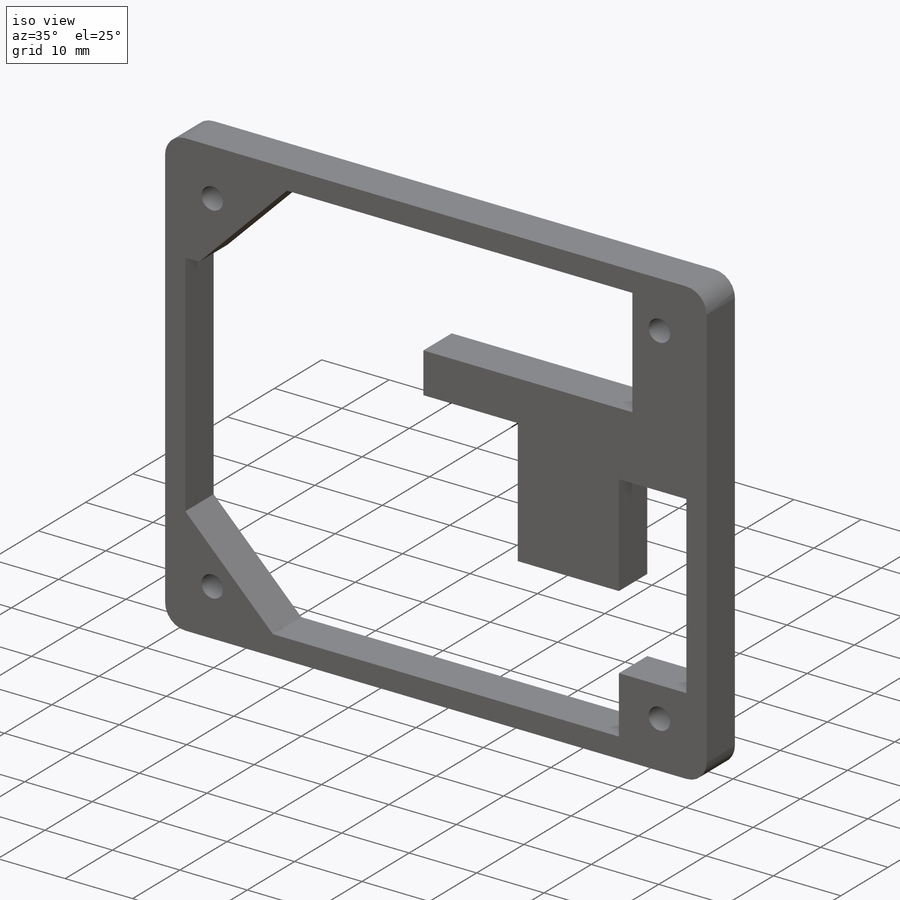
[diagram: iso view]
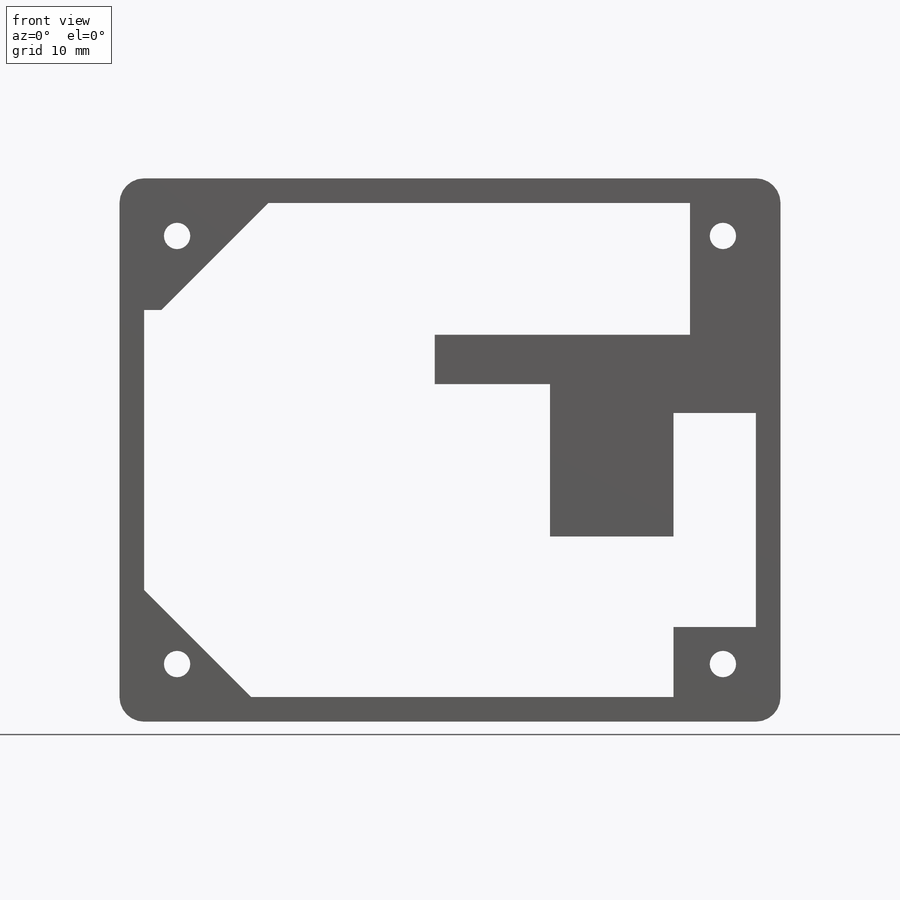
[diagram: front view]
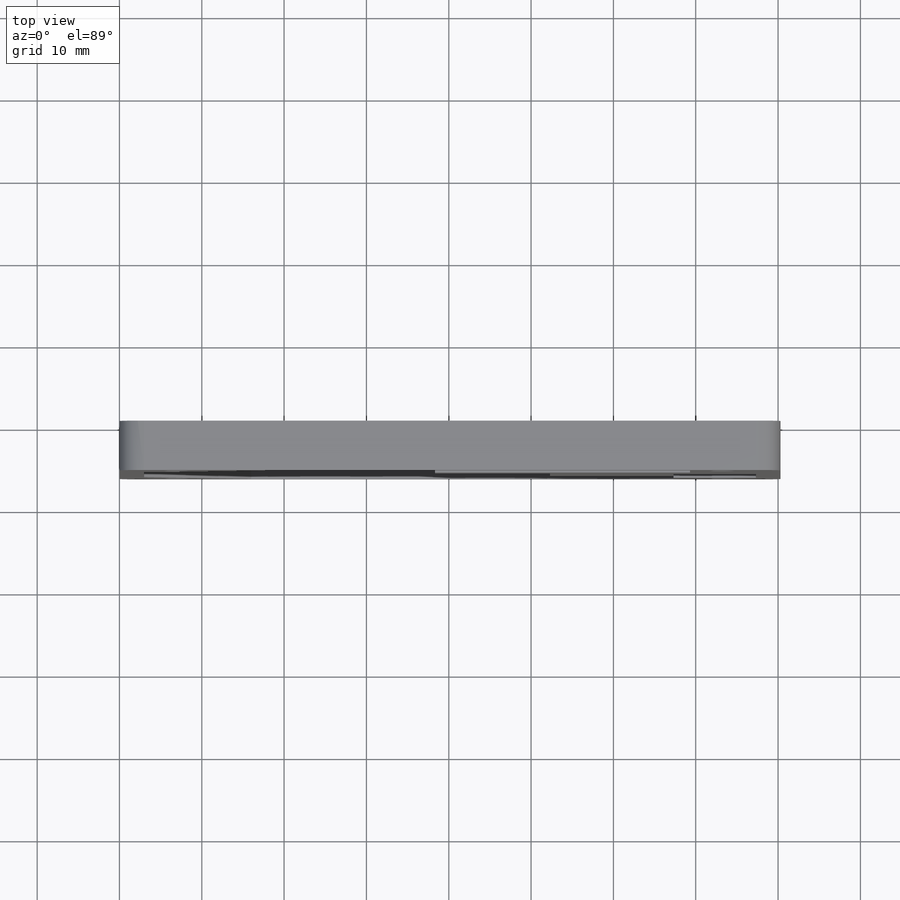
[diagram: top view]
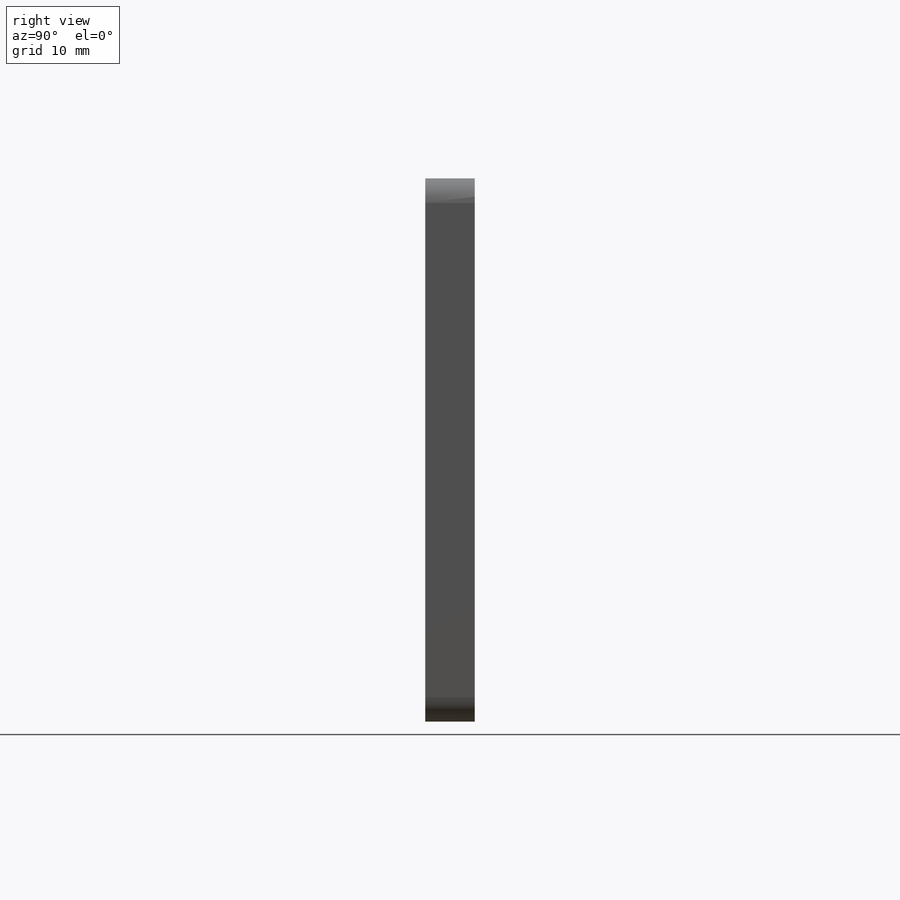
[diagram: right view]
SOLIDWORKS PART (.sldprt)
format: sldprt  version: not decoded by parser v0  size: 308,736 bytes
history: native  units: mm
features: sketch x5, cut_extrude x2, material x1, extrude x1, hole x1, fillet x1 (+12 scaffold rows collapsed)
feature tree (23):
  scaffold x12  (default folders/planes/origin — collapsed)
  material  "Acrylic (Medium-high impact)"
  sketch  "Sketch1"  dims[D1=80.3mm D2=66.0mm]
  extrude  "Boss-Extrude1"  Depth=6mm
  hole  "Ø3.2 (3.2) Diameter Hole1"  Diameter=3.2mm Depth=6mm
  sketch  "Sketch3"  dims[D1=66.3mm D2=52.0mm D3=26.0mm D4=33.15mm]
  sketch  "Sketch2"  dims[hole-wizard template sketch: 60 standard entries collapsed; hole parameters kept: c18.Thru Hole Depth=6.0mm]
  fillet  "Fillet1"  Radius=3mm
  sketch  "Sketch4"  dims[c1.D1=19.0mm c1.D2=34.0mm c1.D3=4.0mm c1.D4=31.0mm c1.D5=16.0mm c1.D6=4.0mm c1.D7=7.0mm c1.D8=7.0mm c1.D9=28.0mm c1.D10=9.5mm c1.D11=4.0mm c1.D12=34.0mm c1.D13=35.0mm c1.D14=13.0mm c1.D15=21.0mm c1.D16=10.0mm c1.D17=26.0mm c1.D18=4.0mm c1.D19=4.5mm c1.D20=40.0mm c1.D21=19.5mm c1.D22=4.0mm c2.D6=4.0mm]
  cut_extrude  "Cut-Extrude1"  [1 undecoded]
  sketch  "Sketch5"  dims[c1.D1=~13.861995mm c2.D1=45.0deg c2.D2=5.0mm c2.D3=~12.988345mm c3.D3=45.0deg c3.D4=~3.535534mm]
  cut_extrude  "Cut-Extrude3"  [1 undecoded]
decode coverage: 8 of 10 modeling features carry decoded parameters
note: ~ marks probable driven/reference dimensions
note: 2 parameter values undecoded
note: suppression state not decoded; provenance and decode notes live in map.json
